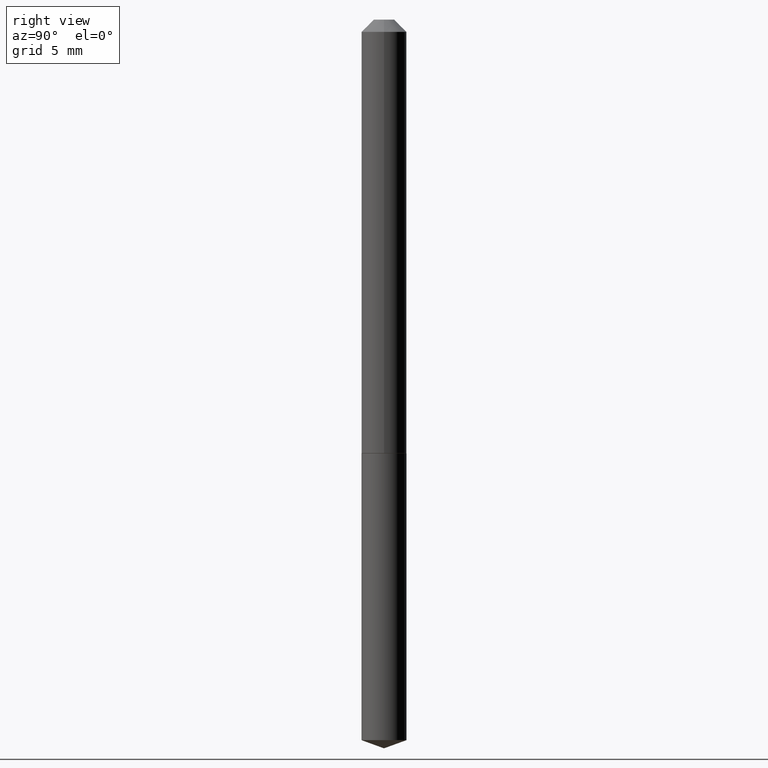
[diagram: clean part render]
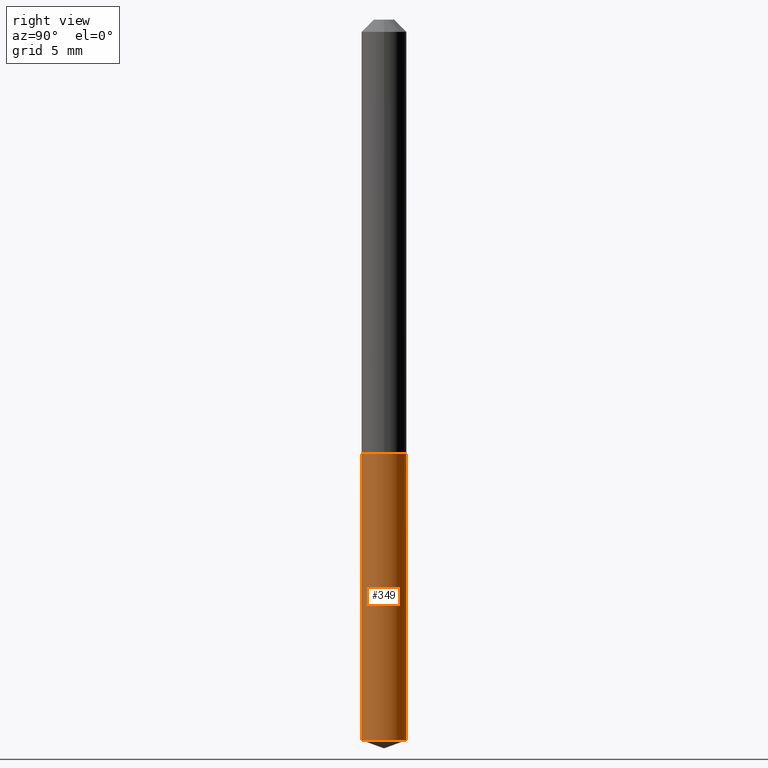
[diagram: same view with one face highlighted and labeled with its STEP entity id]
A machine part, right view. The second image highlights one B-rep face of the part: STEP entity #349.
In plain terms, the highlighted cylindrical surface (edge-blend (fillet) strip) has radius 1.4732 mm, axis along (-0, 0, 1).
Its self-contained STEP definition (entity closure, byte-faithful):
#23 = VECTOR ( 'NONE', #118, 39.37007874015748143 ) ;
#42 = DIRECTION ( 'NONE',  ( -2.445304140748977564E-29, 3.491717149119900219E-15, 1.000000000000000000 ) ) ;
#46 = CARTESIAN_POINT ( 'NONE',  ( 2.729143187702612729E-29, -3.896493174148950582E-15, -1.116000000000000103 ) ) ;
#53 = EDGE_LOOP ( 'NONE', ( #78, #138, #223, #262 ) ) ;
#78 = ORIENTED_EDGE ( 'NONE', *, *, #321, .T. ) ;
#98 = VECTOR ( 'NONE', #117, 39.37007874015748143 ) ;
#117 = DIRECTION ( 'NONE',  ( -2.445304140748977844E-29, 3.491717149119900614E-15, 1.000000000000000000 ) ) ;
#118 = DIRECTION ( 'NONE',  ( -2.445304140748977844E-29, 3.491717149119900614E-15, 1.000000000000000000 ) ) ;
#127 = EDGE_CURVE ( 'NONE', #191, #221, #238, .T. ) ;
#138 = ORIENTED_EDGE ( 'NONE', *, *, #210, .T. ) ;
#156 = DIRECTION ( 'NONE',  ( -2.445304140748977564E-29, 3.491717149119900219E-15, 1.000000000000000000 ) ) ;
#175 = CARTESIAN_POINT ( 'NONE',  ( -4.050118353057583582E-16, -0.05800000000000649775, -1.853889726412560224 ) ) ;
#190 = VERTEX_POINT ( 'NONE', #204 ) ;
#191 = VERTEX_POINT ( 'NONE', #175 ) ;
#192 = CARTESIAN_POINT ( 'NONE',  ( 4.533507991115376796E-29, -6.472995386023078550E-15, -1.853889726412560668 ) ) ;
#196 = CARTESIAN_POINT ( 'NONE',  ( 4.121147867409035375E-16, 0.05799999999999354977, -1.853889726412560890 ) ) ;
#204 = CARTESIAN_POINT ( 'NONE',  ( 4.121147867409035375E-16, 0.05799999999999611022, -1.116000000000000103 ) ) ;
#206 = LINE ( 'NONE', #326, #23 ) ;
#208 = CARTESIAN_POINT ( 'NONE',  ( -4.050118353057761076E-16, -0.05800000000000389566, -1.115999999999999881 ) ) ;
#210 = EDGE_CURVE ( 'NONE', #382, #190, #206, .T. ) ;
#213 = CARTESIAN_POINT ( 'NONE',  ( -4.050118353057761076E-16, -0.05800000000000389566, -1.115999999999999881 ) ) ;
#221 = VERTEX_POINT ( 'NONE', #213 ) ;
#222 = DIRECTION ( 'NONE',  ( -6.982962677686265922E-15, -1.000000000000000000, 2.355041373848502747E-15 ) ) ;
#223 = ORIENTED_EDGE ( 'NONE', *, *, #278, .F. ) ;
#238 = LINE ( 'NONE', #208, #98 ) ;
#262 = ORIENTED_EDGE ( 'NONE', *, *, #127, .F. ) ;
#278 = EDGE_CURVE ( 'NONE', #221, #190, #294, .T. ) ;
#279 = DIRECTION ( 'NONE',  ( -6.982962677686265922E-15, -1.000000000000000000, 2.355041373848502747E-15 ) ) ;
#294 = CIRCLE ( 'NONE', #328, 0.05800000000000000294 ) ;
#308 = DIRECTION ( 'NONE',  ( -2.445304140748977564E-29, 3.491717149119900219E-15, 1.000000000000000000 ) ) ;
#310 = CIRCLE ( 'NONE', #374, 0.05800000000000000294 ) ;
#311 = AXIS2_PLACEMENT_3D ( 'NONE', #46, #156, #279 ) ;
#313 = CYLINDRICAL_SURFACE ( 'NONE', #311, 0.05800000000000000294 ) ;
#321 = EDGE_CURVE ( 'NONE', #191, #382, #310, .T. ) ;
#326 = CARTESIAN_POINT ( 'NONE',  ( 4.121147867408853444E-16, 0.05799999999999611022, -1.116000000000000103 ) ) ;
#328 = AXIS2_PLACEMENT_3D ( 'NONE', #337, #42, #222 ) ;
#332 = DIRECTION ( 'NONE',  ( -6.982962677686265922E-15, -1.000000000000000000, 4.710082747697005495E-15 ) ) ;
#337 = CARTESIAN_POINT ( 'NONE',  ( 2.729143187702612729E-29, -3.896493174148950582E-15, -1.116000000000000103 ) ) ;
#349 = ADVANCED_FACE ( 'NONE', ( #365 ), #313, .T. ) ;
#365 = FACE_OUTER_BOUND ( 'NONE', #53, .T. ) ;
#374 = AXIS2_PLACEMENT_3D ( 'NONE', #192, #308, #332 ) ;
#382 = VERTEX_POINT ( 'NONE', #196 ) ;